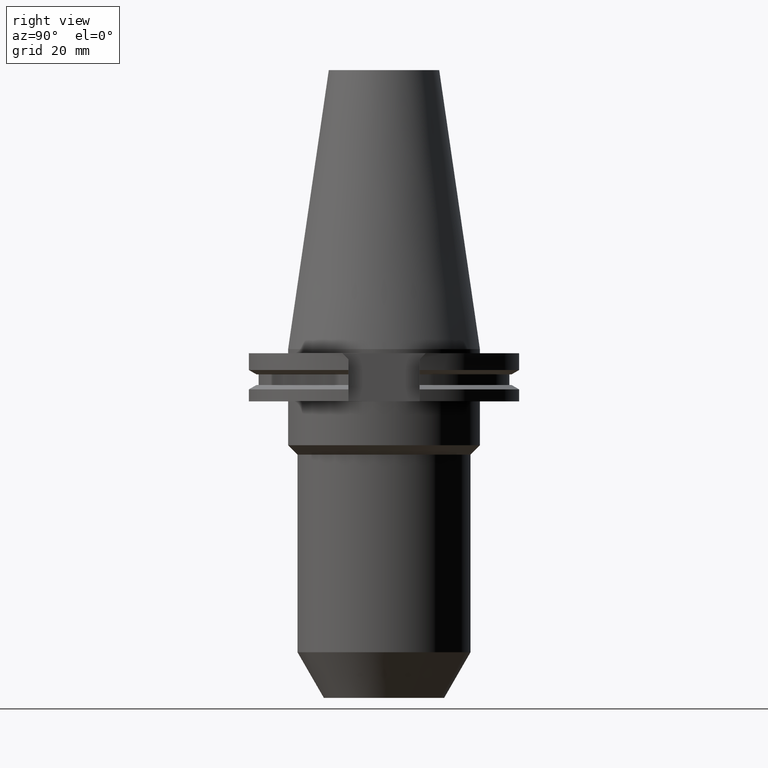
[diagram: clean part render]
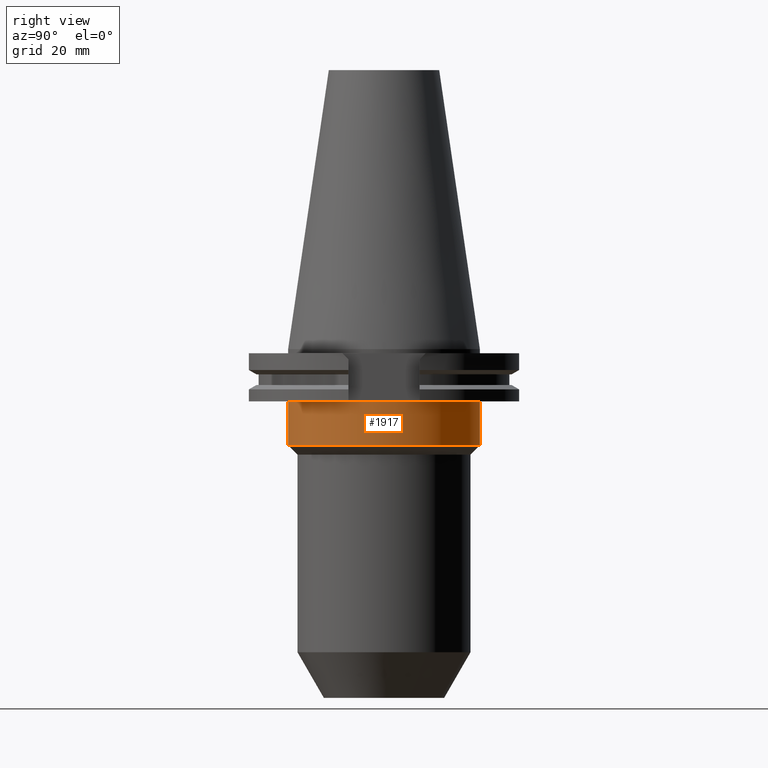
[diagram: same view with one face highlighted and labeled with its STEP entity id]
A machine part, right view. The second image highlights one B-rep face of the part: STEP entity #1917.
In plain terms, the highlighted cylindrical surface (partial cylindrical patch) has radius 34.925 mm, axis along (0, 0, -1).
Its self-contained STEP definition (entity closure, byte-faithful):
#445=CARTESIAN_POINT('',(0.E0,0.E0,-3.5E1));
#446=DIRECTION('',(0.E0,0.E0,1.E0));
#447=DIRECTION('',(0.E0,-1.E0,0.E0));
#448=AXIS2_PLACEMENT_3D('',#445,#446,#447);
#476=DIRECTION('',(0.E0,1.737377222235E-14,-1.E0));
#477=VECTOR('',#476,1.595E1);
#478=CARTESIAN_POINT('',(0.E0,-3.4925E1,-1.905E1));
#479=LINE('',#478,#477);
#483=DIRECTION('',(0.E0,-1.826473490042E-14,-1.E0));
#484=VECTOR('',#483,1.595E1);
#485=CARTESIAN_POINT('',(0.E0,3.4925E1,-1.905E1));
#486=LINE('',#485,#484);
#544=CARTESIAN_POINT('',(0.E0,2.608865076224E-14,-1.905E1));
#545=DIRECTION('',(0.E0,0.E0,-1.E0));
#546=DIRECTION('',(0.E0,1.E0,0.E0));
#547=AXIS2_PLACEMENT_3D('',#544,#545,#546);
#1330=CARTESIAN_POINT('',(0.E0,3.4925E1,-3.5E1));
#1331=VERTEX_POINT('',#1330);
#1332=CARTESIAN_POINT('',(0.E0,-3.4925E1,-3.5E1));
#1333=VERTEX_POINT('',#1332);
#1334=CARTESIAN_POINT('',(0.E0,3.4925E1,-1.905E1));
#1335=VERTEX_POINT('',#1334);
#1336=CARTESIAN_POINT('',(0.E0,-3.4925E1,-1.905E1));
#1337=VERTEX_POINT('',#1336);
#1905=CARTESIAN_POINT('',(0.E0,2.608865076224E-14,1.1303E2));
#1906=DIRECTION('',(0.E0,0.E0,-1.E0));
#1907=DIRECTION('',(0.E0,-1.E0,0.E0));
#1908=AXIS2_PLACEMENT_3D('',#1905,#1906,#1907);
#1909=CYLINDRICAL_SURFACE('',#1908,3.4925E1);
#1910=ORIENTED_EDGE('',*,*,#1895,.T.);
#1911=ORIENTED_EDGE('',*,*,#1872,.F.);
#1912=ORIENTED_EDGE('',*,*,#1899,.F.);
#1914=ORIENTED_EDGE('',*,*,#1913,.F.);
#1915=EDGE_LOOP('',(#1910,#1911,#1912,#1914));
#1916=FACE_OUTER_BOUND('',#1915,.F.);
#449=CIRCLE('',#448,3.4925E1);
#548=CIRCLE('',#547,3.4925E1);
#1872=EDGE_CURVE('',#1333,#1331,#449,.T.);
#1895=EDGE_CURVE('',#1335,#1331,#486,.T.);
#1899=EDGE_CURVE('',#1337,#1333,#479,.T.);
#1913=EDGE_CURVE('',#1335,#1337,#548,.T.);
#1917=ADVANCED_FACE('',(#1916),#1909,.T.);